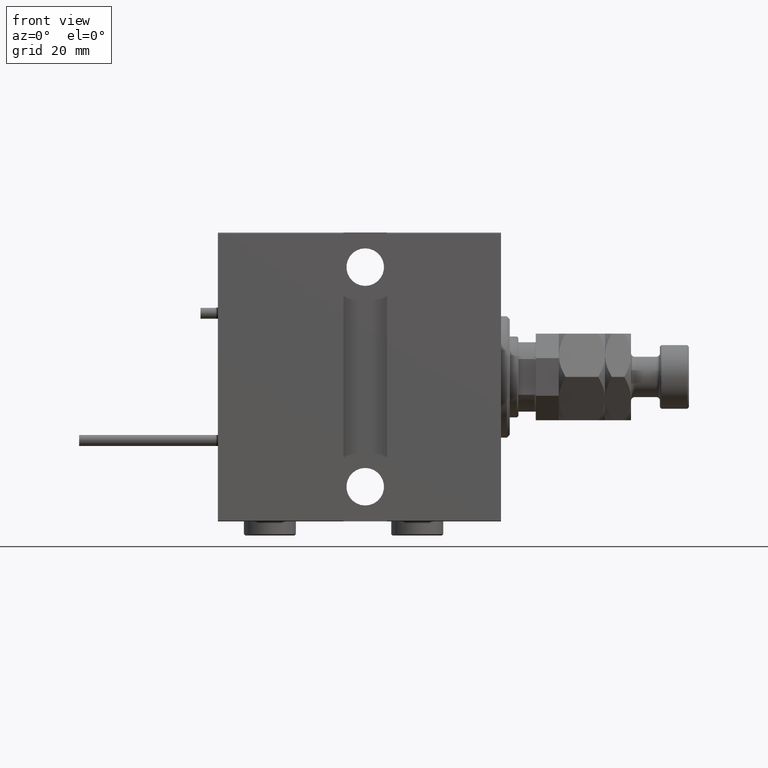
[diagram: clean part render]
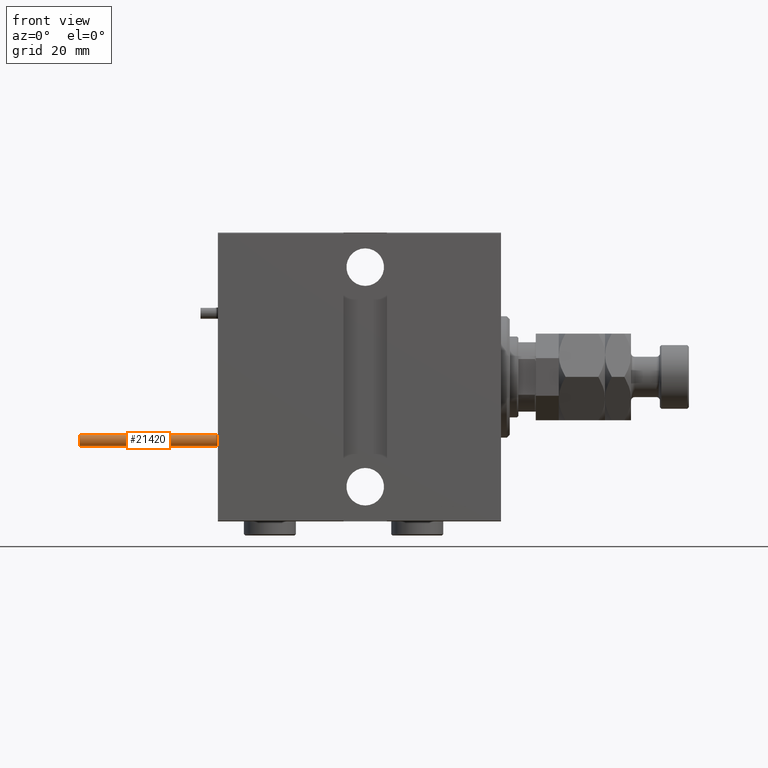
[diagram: same view with one face highlighted and labeled with its STEP entity id]
A machine part, front view. The second image highlights one B-rep face of the part: STEP entity #21420.
In plain terms, the highlighted cylindrical surface (edge-blend (fillet) strip) has radius 1.9 mm, axis along (1, -0, 0).
Its self-contained STEP definition (entity closure, byte-faithful):
#1114 = AXIS2_PLACEMENT_3D ( 'NONE', #45474, #45998, #44957 ) ;
#1916 = DIRECTION ( 'NONE',  ( 1.000000000000000000, 0.000000000000000000, 0.000000000000000000 ) ) ;
#7774 = ORIENTED_EDGE ( 'NONE', *, *, #17206, .T. ) ;
#8495 = CARTESIAN_POINT ( 'NONE',  ( 0.000000000000000000, 0.000000000000000000, 48.00000000000000000 ) ) ;
#10015 = CARTESIAN_POINT ( 'NONE',  ( 1.899999999999999467, 2.326828918379970872E-16, 48.00000000000000000 ) ) ;
#11561 = VERTEX_POINT ( 'NONE', #44613 ) ;
#12141 = CARTESIAN_POINT ( 'NONE',  ( 1.899999999999999467, 2.326828918379970872E-16, 48.00000000000000000 ) ) ;
#12755 = LINE ( 'NONE', #20725, #44991 ) ;
#13950 = AXIS2_PLACEMENT_3D ( 'NONE', #22457, #22183, #1916 ) ;
#17206 = EDGE_CURVE ( 'NONE', #49992, #11561, #12755, .T. ) ;
#17341 = CIRCLE ( 'NONE', #1114, 1.899999999999999467 ) ;
#19086 = CIRCLE ( 'NONE', #13950, 1.899999999999999467 ) ;
#19424 = ORIENTED_EDGE ( 'NONE', *, *, #49370, .F. ) ;
#20725 = CARTESIAN_POINT ( 'NONE',  ( -1.899999999999999467, 0.000000000000000000, 48.00000000000000000 ) ) ;
#20732 = DIRECTION ( 'NONE',  ( -1.000000000000000000, 0.000000000000000000, 0.000000000000000000 ) ) ;
#21020 = AXIS2_PLACEMENT_3D ( 'NONE', #8495, #41018, #20732 ) ;
#21420 = ADVANCED_FACE ( 'NONE', ( #28770 ), #45012, .T. ) ;
#22183 = DIRECTION ( 'NONE',  ( 0.000000000000000000, 0.000000000000000000, 1.000000000000000000 ) ) ;
#22440 = VERTEX_POINT ( 'NONE', #34779 ) ;
#22457 = CARTESIAN_POINT ( 'NONE',  ( 0.000000000000000000, 0.000000000000000000, 0.000000000000000000 ) ) ;
#24761 = DIRECTION ( 'NONE',  ( -0.000000000000000000, -0.000000000000000000, -1.000000000000000000 ) ) ;
#28770 = FACE_OUTER_BOUND ( 'NONE', #38310, .T. ) ;
#29328 = ORIENTED_EDGE ( 'NONE', *, *, #47686, .T. ) ;
#32949 = ORIENTED_EDGE ( 'NONE', *, *, #51789, .F. ) ;
#34779 = CARTESIAN_POINT ( 'NONE',  ( 1.899999999999999467, 2.326828918379970872E-16, 0.000000000000000000 ) ) ;
#37880 = VECTOR ( 'NONE', #40662, 1000.000000000000000 ) ;
#38310 = EDGE_LOOP ( 'NONE', ( #19424, #32949, #7774, #29328 ) ) ;
#40662 = DIRECTION ( 'NONE',  ( -0.000000000000000000, -0.000000000000000000, -1.000000000000000000 ) ) ;
#41018 = DIRECTION ( 'NONE',  ( -0.000000000000000000, -0.000000000000000000, -1.000000000000000000 ) ) ;
#41996 = VERTEX_POINT ( 'NONE', #10015 ) ;
#44613 = CARTESIAN_POINT ( 'NONE',  ( -1.899999999999999467, 0.000000000000000000, 0.000000000000000000 ) ) ;
#44957 = DIRECTION ( 'NONE',  ( 1.000000000000000000, 0.000000000000000000, 0.000000000000000000 ) ) ;
#44991 = VECTOR ( 'NONE', #24761, 1000.000000000000000 ) ;
#45012 = CYLINDRICAL_SURFACE ( 'NONE', #21020, 1.899999999999999467 ) ;
#45474 = CARTESIAN_POINT ( 'NONE',  ( 0.000000000000000000, 0.000000000000000000, 48.00000000000000000 ) ) ;
#45998 = DIRECTION ( 'NONE',  ( 0.000000000000000000, 0.000000000000000000, 1.000000000000000000 ) ) ;
#47686 = EDGE_CURVE ( 'NONE', #11561, #22440, #19086, .T. ) ;
#48651 = LINE ( 'NONE', #12141, #37880 ) ;
#49370 = EDGE_CURVE ( 'NONE', #41996, #22440, #48651, .T. ) ;
#49992 = VERTEX_POINT ( 'NONE', #52264 ) ;
#51789 = EDGE_CURVE ( 'NONE', #49992, #41996, #17341, .T. ) ;
#52264 = CARTESIAN_POINT ( 'NONE',  ( -1.899999999999999467, 0.000000000000000000, 48.00000000000000000 ) ) ;